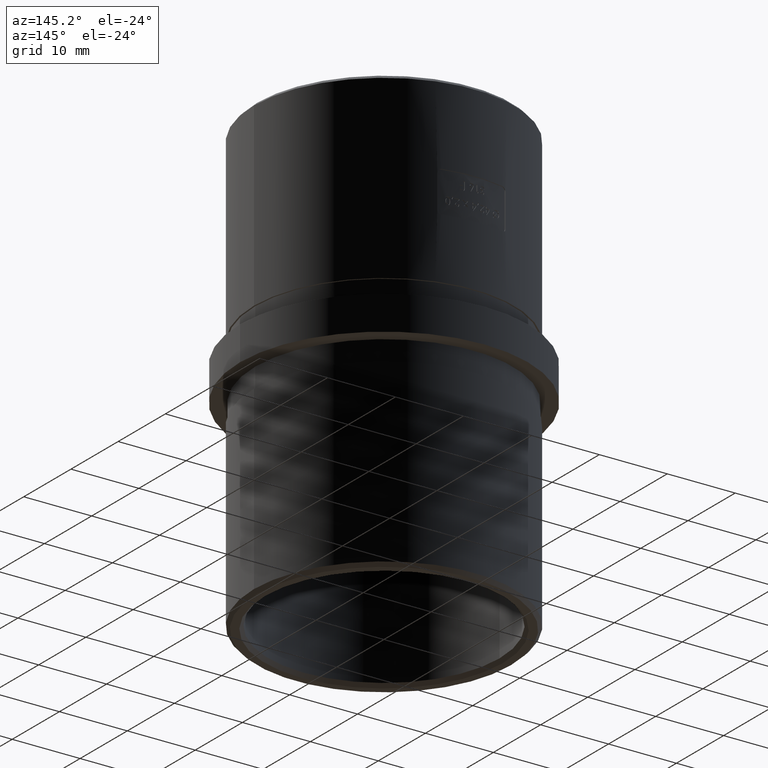
[diagram: clean part render]
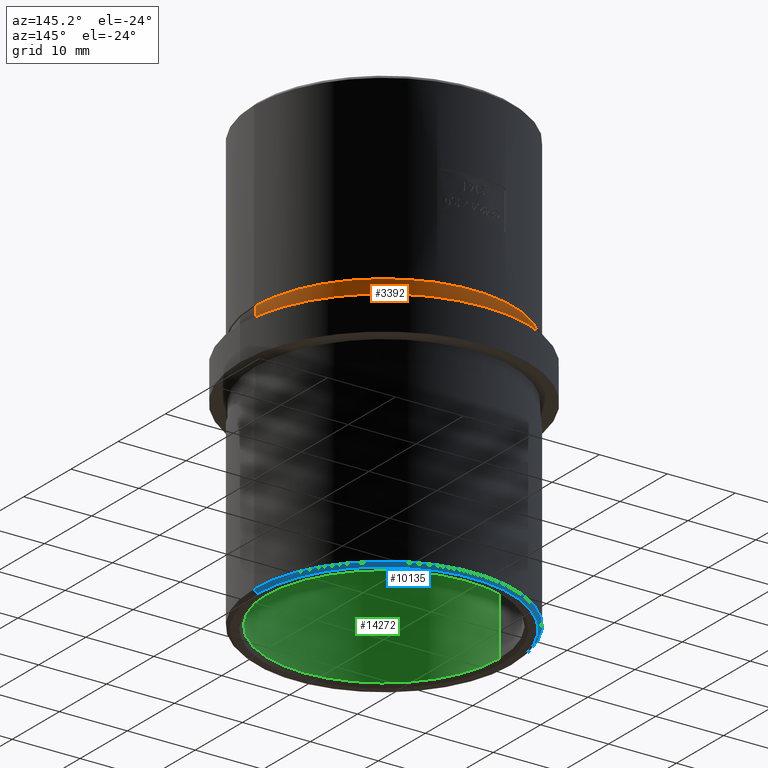
[diagram: same view with three faces highlighted in distinct colors, each labeled with its STEP entity id]
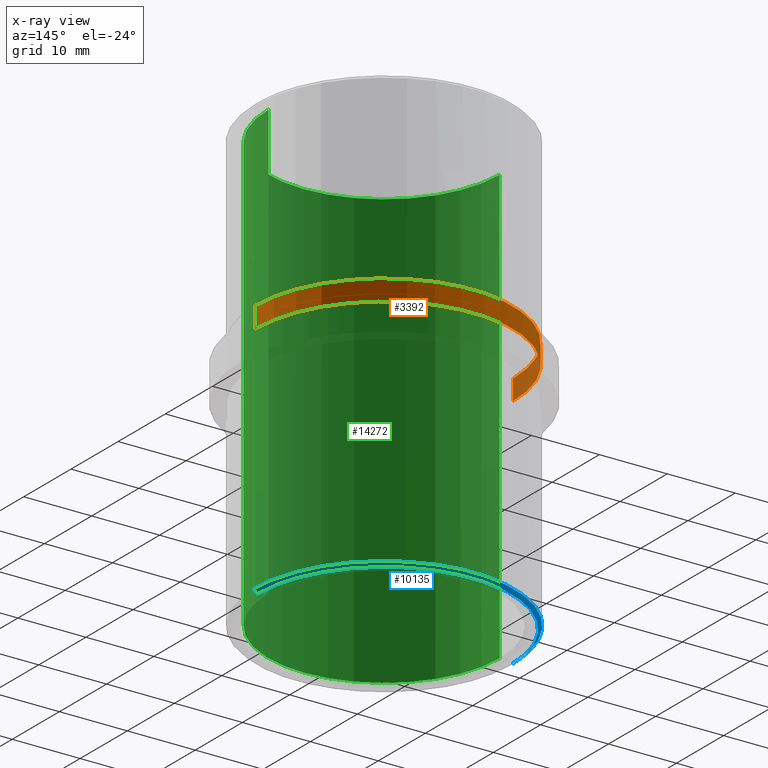
[diagram: x-ray of the same camera — body ghosted, the three highlighted faces saturated]
A machine part, auxiliary view with three faces highlighted in distinct colors.
The next image is the same camera in x-ray (body ghosted, the three faces saturated) — at least one of them is partly hidden behind the body in this view.
Their STEP definitions:

[orange] entity #3392 — the highlighted cylindrical surface (partial cylindrical patch) has radius 18.95 mm, axis along (-0, -0, -1).
#81 = CARTESIAN_POINT ( 'NONE',  ( 18.95000000000000300, 2.320705684384234700E-015, 5.500000000000000000 ) ) ;
#515 = EDGE_LOOP ( 'NONE', ( #10760, #6153, #7478, #11815 ) ) ;
#1548 = DIRECTION ( 'NONE',  ( -0.0000000000000000000, -0.0000000000000000000, -1.000000000000000000 ) ) ;
#2160 = EDGE_CURVE ( 'NONE', #15804, #7872, #11759, .T. ) ;
#2430 = DIRECTION ( 'NONE',  ( 0.0000000000000000000, 0.0000000000000000000, 1.000000000000000000 ) ) ;
#2750 = EDGE_CURVE ( 'NONE', #11804, #15804, #11912, .T. ) ;
#3185 = CARTESIAN_POINT ( 'NONE',  ( 0.0000000000000000000, 0.0000000000000000000, 5.500000000000000000 ) ) ;
#3392 = ADVANCED_FACE ( 'NONE', ( #3637 ), #14424, .T. ) ;
#3432 = CARTESIAN_POINT ( 'NONE',  ( -18.95000000000000300, 0.0000000000000000000, 5.500000000000000000 ) ) ;
#3637 = FACE_OUTER_BOUND ( 'NONE', #515, .T. ) ;
#4727 = DIRECTION ( 'NONE',  ( -0.0000000000000000000, -0.0000000000000000000, -1.000000000000000000 ) ) ;
#6153 = ORIENTED_EDGE ( 'NONE', *, *, #2750, .T. ) ;
#6667 = LINE ( 'NONE', #3432, #15877 ) ;
#6724 = DIRECTION ( 'NONE',  ( -0.0000000000000000000, -0.0000000000000000000, -1.000000000000000000 ) ) ;
#7478 = ORIENTED_EDGE ( 'NONE', *, *, #2160, .T. ) ;
#7872 = VERTEX_POINT ( 'NONE', #8988 ) ;
#8856 = CIRCLE ( 'NONE', #12518, 18.95000000000000300 ) ;
#8988 = CARTESIAN_POINT ( 'NONE',  ( -18.95000000000000300, 0.0000000000000000000, 2.500000000000000000 ) ) ;
#9531 = DIRECTION ( 'NONE',  ( 1.000000000000000000, 0.0000000000000000000, 0.0000000000000000000 ) ) ;
#9730 = CARTESIAN_POINT ( 'NONE',  ( 0.0000000000000000000, 0.0000000000000000000, 2.500000000000000000 ) ) ;
#10152 = EDGE_CURVE ( 'NONE', #11804, #16470, #8856, .T. ) ;
#10760 = ORIENTED_EDGE ( 'NONE', *, *, #10152, .F. ) ;
#11235 = DIRECTION ( 'NONE',  ( -1.000000000000000000, 0.0000000000000000000, 0.0000000000000000000 ) ) ;
#11510 = CARTESIAN_POINT ( 'NONE',  ( -18.95000000000000300, 0.0000000000000000000, 5.500000000000000000 ) ) ;
#11759 = CIRCLE ( 'NONE', #18632, 18.95000000000000300 ) ;
#11804 = VERTEX_POINT ( 'NONE', #12245 ) ;
#11815 = ORIENTED_EDGE ( 'NONE', *, *, #18365, .F. ) ;
#11912 = LINE ( 'NONE', #81, #14663 ) ;
#12245 = CARTESIAN_POINT ( 'NONE',  ( 18.95000000000000300, 2.320705684384234700E-015, 5.500000000000000000 ) ) ;
#12518 = AXIS2_PLACEMENT_3D ( 'NONE', #3185, #12900, #18657 ) ;
#12900 = DIRECTION ( 'NONE',  ( 0.0000000000000000000, 0.0000000000000000000, 1.000000000000000000 ) ) ;
#13993 = CARTESIAN_POINT ( 'NONE',  ( 0.0000000000000000000, 0.0000000000000000000, 5.500000000000000000 ) ) ;
#14424 = CYLINDRICAL_SURFACE ( 'NONE', #15963, 18.95000000000000300 ) ;
#14663 = VECTOR ( 'NONE', #1548, 1000.000000000000000 ) ;
#15804 = VERTEX_POINT ( 'NONE', #16927 ) ;
#15877 = VECTOR ( 'NONE', #4727, 1000.000000000000000 ) ;
#15963 = AXIS2_PLACEMENT_3D ( 'NONE', #13993, #6724, #11235 ) ;
#16470 = VERTEX_POINT ( 'NONE', #11510 ) ;
#16927 = CARTESIAN_POINT ( 'NONE',  ( 18.95000000000000300, 2.320705684384234700E-015, 2.500000000000000000 ) ) ;
#18365 = EDGE_CURVE ( 'NONE', #16470, #7872, #6667, .T. ) ;
#18632 = AXIS2_PLACEMENT_3D ( 'NONE', #9730, #2430, #9531 ) ;
#18657 = DIRECTION ( 'NONE',  ( 1.000000000000000000, 0.0000000000000000000, 0.0000000000000000000 ) ) ;

[blue] entity #10135 — the highlighted conical surface has half-angle 45 deg.
#995 = AXIS2_PLACEMENT_3D ( 'NONE', #4448, #1559, #4320 ) ;
#1497 = VERTEX_POINT ( 'NONE', #12984 ) ;
#1559 = DIRECTION ( 'NONE',  ( -0.0000000000000000000, -0.0000000000000000000, 1.000000000000000000 ) ) ;
#2404 = VERTEX_POINT ( 'NONE', #11816 ) ;
#2838 = DIRECTION ( 'NONE',  ( -0.0000000000000000000, -0.0000000000000000000, 1.000000000000000000 ) ) ;
#3006 = EDGE_CURVE ( 'NONE', #18858, #2404, #6839, .T. ) ;
#3029 = VERTEX_POINT ( 'NONE', #9720 ) ;
#3143 = AXIS2_PLACEMENT_3D ( 'NONE', #5605, #8691, #6942 ) ;
#3963 = DIRECTION ( 'NONE',  ( -0.7071067811865500200, 8.659560562354962400E-017, 0.7071067811865451300 ) ) ;
#4320 = DIRECTION ( 'NONE',  ( -1.000000000000000000, 0.0000000000000000000, 0.0000000000000000000 ) ) ;
#4448 = CARTESIAN_POINT ( 'NONE',  ( 0.0000000000000000000, 0.0000000000000000000, -32.00000000000000000 ) ) ;
#5584 = CARTESIAN_POINT ( 'NONE',  ( 19.15000000000000200, 0.0000000000000000000, -32.00000000000000000 ) ) ;
#5605 = CARTESIAN_POINT ( 'NONE',  ( 0.0000000000000000000, 0.0000000000000000000, -32.50000000000000000 ) ) ;
#6060 = ORIENTED_EDGE ( 'NONE', *, *, #10090, .F. ) ;
#6758 = CARTESIAN_POINT ( 'NONE',  ( -19.15000000000000200, 2.345198620367181800E-015, -32.00000000000000000 ) ) ;
#6839 = LINE ( 'NONE', #6758, #8009 ) ;
#6942 = DIRECTION ( 'NONE',  ( -1.000000000000000000, 0.0000000000000000000, 0.0000000000000000000 ) ) ;
#7378 = CARTESIAN_POINT ( 'NONE',  ( 0.0000000000000000000, 0.0000000000000000000, -32.00000000000000000 ) ) ;
#7762 = EDGE_CURVE ( 'NONE', #18858, #3029, #10101, .T. ) ;
#8009 = VECTOR ( 'NONE', #3963, 1000.000000000000100 ) ;
#8409 = CARTESIAN_POINT ( 'NONE',  ( -18.64999999999999900, 2.314582450388497600E-015, -32.50000000000000000 ) ) ;
#8691 = DIRECTION ( 'NONE',  ( 0.0000000000000000000, 0.0000000000000000000, -1.000000000000000000 ) ) ;
#8757 = ORIENTED_EDGE ( 'NONE', *, *, #10244, .F. ) ;
#9083 = CIRCLE ( 'NONE', #995, 19.15000000000000200 ) ;
#9720 = CARTESIAN_POINT ( 'NONE',  ( 18.64999999999999900, 0.0000000000000000000, -32.50000000000000000 ) ) ;
#10090 = EDGE_CURVE ( 'NONE', #1497, #2404, #9083, .T. ) ;
#10101 = CIRCLE ( 'NONE', #3143, 18.64999999999999900 ) ;
#10135 = ADVANCED_FACE ( 'NONE', ( #17572 ), #12761, .T. ) ;
#10244 = EDGE_CURVE ( 'NONE', #3029, #1497, #13684, .T. ) ;
#10323 = DIRECTION ( 'NONE',  ( 1.000000000000000000, 0.0000000000000000000, 0.0000000000000000000 ) ) ;
#11550 = AXIS2_PLACEMENT_3D ( 'NONE', #7378, #2838, #10323 ) ;
#11816 = CARTESIAN_POINT ( 'NONE',  ( -19.15000000000000200, 0.0000000000000000000, -32.00000000000000000 ) ) ;
#12511 = VECTOR ( 'NONE', #15786, 1000.000000000000100 ) ;
#12761 = CONICAL_SURFACE ( 'NONE', #11550, 19.15000000000000200, 0.7853981633974517200 ) ;
#12984 = CARTESIAN_POINT ( 'NONE',  ( 19.15000000000000200, -2.345198620367181800E-015, -32.00000000000000000 ) ) ;
#13684 = LINE ( 'NONE', #5584, #12511 ) ;
#13872 = ORIENTED_EDGE ( 'NONE', *, *, #7762, .F. ) ;
#15152 = ORIENTED_EDGE ( 'NONE', *, *, #3006, .T. ) ;
#15786 = DIRECTION ( 'NONE',  ( 0.7071067811865500200, 0.0000000000000000000, 0.7071067811865451300 ) ) ;
#15953 = EDGE_LOOP ( 'NONE', ( #13872, #15152, #6060, #8757 ) ) ;
#17572 = FACE_OUTER_BOUND ( 'NONE', #15953, .T. ) ;
#18858 = VERTEX_POINT ( 'NONE', #8409 ) ;

[green] entity #14272 — the highlighted cylindrical surface (partial cylindrical patch) has radius 17 mm, axis along (-0, -0, 1).
#60 = VECTOR ( 'NONE', #1111, 1000.000000000000000 ) ;
#96 = ORIENTED_EDGE ( 'NONE', *, *, #18481, .F. ) ;
#98 = VECTOR ( 'NONE', #14795, 1000.000000000000000 ) ;
#153 = EDGE_CURVE ( 'NONE', #8992, #13274, #11090, .T. ) ;
#194 = ORIENTED_EDGE ( 'NONE', *, *, #16015, .T. ) ;
#205 = CARTESIAN_POINT ( 'NONE',  ( -17.00000000000000000, -1.018200415092510100E-017, 4.901575854700858800 ) ) ;
#332 = CARTESIAN_POINT ( 'NONE',  ( -17.00000000000000000, -0.02359443886947687800, -0.6157190731958368500 ) ) ;
#426 = VERTEX_POINT ( 'NONE', #4260 ) ;
#438 = CARTESIAN_POINT ( 'NONE',  ( -17.00000000000000000, -1.451841727370134700E-017, 0.0000000000000000000 ) ) ;
#461 = EDGE_CURVE ( 'NONE', #1821, #16996, #506, .T. ) ;
#506 = B_SPLINE_CURVE_WITH_KNOTS ( 'NONE', 3,
 ( #3208, #2955, #10387, #4560 ),
 .UNSPECIFIED., .F., .F.,
 ( 4, 4 ),
 ( 0.0000000000000000000, 0.0001390969608293648400 ),
 .UNSPECIFIED. ) ;
#518 = VECTOR ( 'NONE', #17037, 1000.000000000000000 ) ;
#655 = CARTESIAN_POINT ( 'NONE',  ( -16.99999999999999300, -1.065186282819645400E-014, -0.6752836515302631500 ) ) ;
#688 = VECTOR ( 'NONE', #3036, 1000.000000000000000 ) ;
#715 = EDGE_CURVE ( 'NONE', #13132, #15500, #3980, .T. ) ;
#832 = EDGE_CURVE ( 'NONE', #6488, #5732, #8080, .T. ) ;
#835 = ORIENTED_EDGE ( 'NONE', *, *, #5159, .T. ) ;
#981 = VERTEX_POINT ( 'NONE', #4893 ) ;
#994 = EDGE_CURVE ( 'NONE', #9493, #5532, #3731, .T. ) ;
#1062 = VECTOR ( 'NONE', #15689, 1000.000000000000000 ) ;
#1090 = B_SPLINE_CURVE_WITH_KNOTS ( 'NONE', 3,
 ( #15584, #8272, #5456, #12825 ),
 .UNSPECIFIED., .F., .F.,
 ( 4, 4 ),
 ( 0.0006531291635182251200, 0.0007872892383985751200 ),
 .UNSPECIFIED. ) ;
#1111 = DIRECTION ( 'NONE',  ( 0.0000000000000000000, 0.0000000000000000000, -1.000000000000000000 ) ) ;
#1156 = EDGE_CURVE ( 'NONE', #16403, #13504, #3279, .T. ) ;
#1161 = CARTESIAN_POINT ( 'NONE',  ( -17.00000000000000000, -1.173486531376176200E-017, 1.356837606837611100 ) ) ;
#1202 = VECTOR ( 'NONE', #13883, 1000.000000000000000 ) ;
#1280 = VERTEX_POINT ( 'NONE', #18598 ) ;
#1388 = EDGE_CURVE ( 'NONE', #9089, #18645, #11992, .T. ) ;
#1453 = CARTESIAN_POINT ( 'NONE',  ( -16.99999153948185100, -0.01696047008547009500, 7.926104684161328100 ) ) ;
#1488 = CARTESIAN_POINT ( 'NONE',  ( -17.00000000000000000, 2.081899558550500300E-015, 0.0000000000000000000 ) ) ;
#1514 = EDGE_CURVE ( 'NONE', #11690, #16996, #12425, .T. ) ;
#1569 = LINE ( 'NONE', #13503, #10277 ) ;
#1580 = ORIENTED_EDGE ( 'NONE', *, *, #2269, .F. ) ;
#1586 = CARTESIAN_POINT ( 'NONE',  ( -16.99996615790213600, -0.03392094017094018200, -2.545395549545937300 ) ) ;
#1645 = B_SPLINE_CURVE_WITH_KNOTS ( 'NONE', 3,
 ( #17857, #3248, #1648, #17920 ),
 .UNSPECIFIED., .F., .F.,
 ( 4, 4 ),
 ( 0.0004303483552567856800, 0.0006014618264913205500 ),
 .UNSPECIFIED. ) ;
#1648 = CARTESIAN_POINT ( 'NONE',  ( -16.99996843644444400, -0.03277901597218872000, -0.4307630806502916700 ) ) ;
#1747 = VERTEX_POINT ( 'NONE', #2264 ) ;
#1752 = EDGE_CURVE ( 'NONE', #14467, #15543, #10594, .T. ) ;
#1797 = DIRECTION ( 'NONE',  ( 0.0000000000000000000, 0.0000000000000000000, -1.000000000000000000 ) ) ;
#1821 = VERTEX_POINT ( 'NONE', #13980 ) ;
#1870 = DIRECTION ( 'NONE',  ( -0.0000000000000000000, -0.0000000000000000000, 1.000000000000000000 ) ) ;
#1880 = EDGE_CURVE ( 'NONE', #14201, #6796, #9007, .T. ) ;
#1945 = CARTESIAN_POINT ( 'NONE',  ( -17.00000000000000000, 2.081899558550500300E-015, 0.0000000000000000000 ) ) ;
#1995 = EDGE_CURVE ( 'NONE', #3925, #18042, #4718, .T. ) ;
#2015 = CARTESIAN_POINT ( 'NONE',  ( -17.00000000000000000, -9.705192009639155200E-018, 0.0000000000000000000 ) ) ;
#2050 = VECTOR ( 'NONE', #4462, 1000.000000000000000 ) ;
#2093 = CARTESIAN_POINT ( 'NONE',  ( -17.00000000000000000, -9.563437048716300800E-018, 0.0000000000000000000 ) ) ;
#2096 = VECTOR ( 'NONE', #5787, 1000.000000000000000 ) ;
#2110 = VECTOR ( 'NONE', #11838, 1000.000000000000000 ) ;
#2118 = DIRECTION ( 'NONE',  ( 0.0000000000000000000, 0.0000000000000000000, -1.000000000000000000 ) ) ;
#2137 = DIRECTION ( 'NONE',  ( -0.0000000000000000000, -0.0000000000000000000, -1.000000000000000000 ) ) ;
#2159 = VECTOR ( 'NONE', #7217, 1000.000000000000000 ) ;
#2251 = CARTESIAN_POINT ( 'NONE',  ( -17.00000000000000000, -1.130960043099321600E-017, 0.0000000000000000000 ) ) ;
#2264 = CARTESIAN_POINT ( 'NONE',  ( -17.00000000000000000, -1.018200415092510100E-017, 4.121394230769235300 ) ) ;
#2269 = EDGE_CURVE ( 'NONE', #426, #13290, #18868, .T. ) ;
#2286 = ORIENTED_EDGE ( 'NONE', *, *, #18008, .T. ) ;
#2308 = CARTESIAN_POINT ( 'NONE',  ( -17.00000000000000000, 2.081899558550500300E-015, 32.00000000000000000 ) ) ;
#2326 = VERTEX_POINT ( 'NONE', #14701 ) ;
#2331 = DIRECTION ( 'NONE',  ( -0.0000000000000000000, -0.0000000000000000000, 1.000000000000000000 ) ) ;
#2418 = CARTESIAN_POINT ( 'NONE',  ( -17.00000000000000000, -1.538827726118246900E-017, 0.0000000000000000000 ) ) ;
#2449 = CARTESIAN_POINT ( 'NONE',  ( -17.00000000000000000, -1.442432734670082200E-012, -1.367181556334134700 ) ) ;
#2461 = CARTESIAN_POINT ( 'NONE',  ( -16.99999153948185100, -0.01696047008547009500, 6.347985944177350100 ) ) ;
#2464 = ORIENTED_EDGE ( 'NONE', *, *, #12108, .F. ) ;
#2466 = CARTESIAN_POINT ( 'NONE',  ( -17.00000000000000000, 4.175847468961536300E-012, 7.782763963893749800 ) ) ;
#2479 = CARTESIAN_POINT ( 'NONE',  ( -17.00000000000000700, -0.01155147925294645500, 6.254911555623271700 ) ) ;
#2555 = ORIENTED_EDGE ( 'NONE', *, *, #18838, .F. ) ;
#2584 = VECTOR ( 'NONE', #13943, 1000.000000000000000 ) ;
#2666 = VECTOR ( 'NONE', #16187, 1000.000000000000000 ) ;
#2683 = DIRECTION ( 'NONE',  ( -0.0000000000000000000, -0.0000000000000000000, 1.000000000000000000 ) ) ;
#2709 = CARTESIAN_POINT ( 'NONE',  ( -17.00000000000000000, -1.500167282230196800E-017, -7.784855769230776300 ) ) ;
#2732 = ORIENTED_EDGE ( 'NONE', *, *, #14046, .T. ) ;
#2783 = CARTESIAN_POINT ( 'NONE',  ( -17.00000000000000000, -1.173486531376176200E-017, 0.7462606837606879900 ) ) ;
#2797 = ORIENTED_EDGE ( 'NONE', *, *, #14655, .F. ) ;
#2807 = VECTOR ( 'NONE', #2118, 1000.000000000000000 ) ;
#2866 = EDGE_LOOP ( 'NONE', ( #3049, #194, #5906, #3071, #18382, #12160, #16572, #8803, #10661, #18911, #4927, #16526, #6375, #2732, #8251, #2555, #7091, #10981, #2464, #6221, #11727, #7406, #8534, #2797, #11909, #16148, #4495, #14026, #14053, #10543, #14214, #9808, #6453, #10712, #16773, #2286, #17127, #7222, #11747, #12895, #1580, #15685, #96, #5287, #5261, #17923, #15822, #11973, #12007, #10646, #6666, #14350, #18619, #10171, #835, #3265 ) ) ;
#2909 = CIRCLE ( 'NONE', #10446, 17.00000000000000000 ) ;
#2921 = CARTESIAN_POINT ( 'NONE',  ( -16.99996615790213600, -0.03392094017094018200, -1.527767344417734900 ) ) ;
#2941 = B_SPLINE_CURVE_WITH_KNOTS ( 'NONE', 3,
 ( #3210, #9093, #332, #10574 ),
 .UNSPECIFIED., .F., .F.,
 ( 4, 4 ),
 ( 0.0000000000000000000, 0.0001900168415862206300 ),
 .UNSPECIFIED. ) ;
#2955 = CARTESIAN_POINT ( 'NONE',  ( -16.99999262009691100, -0.01587733696618379800, 3.333420105072468800 ) ) ;
#3024 = VECTOR ( 'NONE', #7568, 1000.000000000000000 ) ;
#3036 = DIRECTION ( 'NONE',  ( 0.0000000000000000000, 0.0000000000000000000, -1.000000000000000000 ) ) ;
#3047 = LINE ( 'NONE', #6246, #13827 ) ;
#3049 = ORIENTED_EDGE ( 'NONE', *, *, #1752, .T. ) ;
#3071 = ORIENTED_EDGE ( 'NONE', *, *, #5937, .T. ) ;
#3086 = CARTESIAN_POINT ( 'NONE',  ( -17.00000000000000000, -1.083278828970727000E-017, 2.985042735042732900 ) ) ;
#3182 = CARTESIAN_POINT ( 'NONE',  ( -17.00000000000000000, 2.081899558550500300E-015, 0.0000000000000000000 ) ) ;
#3202 = VERTEX_POINT ( 'NONE', #16814 ) ;
#3208 = CARTESIAN_POINT ( 'NONE',  ( -16.99999153948185100, -0.01696047008547009500, 3.379903679220082900 ) ) ;
#3210 = CARTESIAN_POINT ( 'NONE',  ( -16.99996615790213600, -0.03392094017094018200, -0.4884085369925190700 ) ) ;
#3236 = VERTEX_POINT ( 'NONE', #6464 ) ;
#3248 = CARTESIAN_POINT ( 'NONE',  ( -16.99999999999999300, -0.02336642372416752500, -0.3729873568250621800 ) ) ;
#3261 = VERTEX_POINT ( 'NONE', #13688 ) ;
#3265 = ORIENTED_EDGE ( 'NONE', *, *, #15760, .F. ) ;
#3279 = LINE ( 'NONE', #15651, #15184 ) ;
#3302 = EDGE_CURVE ( 'NONE', #3202, #9915, #9134, .T. ) ;
#3316 = VECTOR ( 'NONE', #4747, 1000.000000000000000 ) ;
#3398 = CARTESIAN_POINT ( 'NONE',  ( -17.00000000000000000, 4.175847468961536300E-012, 7.782763963893749800 ) ) ;
#3418 = CARTESIAN_POINT ( 'NONE',  ( -17.00000000000000000, -1.018200415092510100E-017, 0.0000000000000000000 ) ) ;
#3599 = CARTESIAN_POINT ( 'NONE',  ( 17.00000000000000000, 0.0000000000000000000, -32.00000000000000000 ) ) ;
#3616 = DIRECTION ( 'NONE',  ( -1.000000000000000000, 0.0000000000000000000, 0.0000000000000000000 ) ) ;
#3699 = LINE ( 'NONE', #9934, #10582 ) ;
#3731 = LINE ( 'NONE', #13557, #6913 ) ;
#3750 = LINE ( 'NONE', #16323, #98 ) ;
#3814 = LINE ( 'NONE', #15169, #2666 ) ;
#3884 = CARTESIAN_POINT ( 'NONE',  ( -16.99996615790213600, -0.03392094017094018200, -1.527767344417734900 ) ) ;
#3921 = DIRECTION ( 'NONE',  ( -0.0000000000000000000, -0.0000000000000000000, 1.000000000000000000 ) ) ;
#3925 = VERTEX_POINT ( 'NONE', #2461 ) ;
#3980 = LINE ( 'NONE', #2093, #518 ) ;
#4030 = CARTESIAN_POINT ( 'NONE',  ( -16.99999251772928200, -0.01597994313300055800, 7.877590112892251600 ) ) ;
#4077 = CARTESIAN_POINT ( 'NONE',  ( -17.00000000000000700, -0.02229529309807184000, -1.638411926904188100 ) ) ;
#4095 = CARTESIAN_POINT ( 'NONE',  ( -17.00000000000000000, -9.563437048716300800E-018, 7.208199786324785300 ) ) ;
#4142 = CARTESIAN_POINT ( 'NONE',  ( -17.00000000000000000, 2.081899558550500300E-015, 0.0000000000000000000 ) ) ;
#4222 = DIRECTION ( 'NONE',  ( -0.0000000000000000000, -0.0000000000000000000, 1.000000000000000000 ) ) ;
#4230 = EDGE_CURVE ( 'NONE', #11403, #9011, #14409, .T. ) ;
#4247 = LINE ( 'NONE', #13533, #3316 ) ;
#4260 = CARTESIAN_POINT ( 'NONE',  ( -17.00000000000000000, -1.018200415092510100E-017, 5.563034188034191800 ) ) ;
#4357 = EDGE_CURVE ( 'NONE', #6282, #17164, #1569, .T. ) ;
#4400 = CARTESIAN_POINT ( 'NONE',  ( -17.00000000000000000, -1.083278828970727000E-017, 0.0000000000000000000 ) ) ;
#4428 = CARTESIAN_POINT ( 'NONE',  ( -17.00000000000000000, -1.018200415092510100E-017, 0.0000000000000000000 ) ) ;
#4453 = LINE ( 'NONE', #15345, #9849 ) ;
#4462 = DIRECTION ( 'NONE',  ( 0.0000000000000000000, 0.0000000000000000000, -1.000000000000000000 ) ) ;
#4485 = LINE ( 'NONE', #11798, #10212 ) ;
#4495 = ORIENTED_EDGE ( 'NONE', *, *, #994, .T. ) ;
#4560 = CARTESIAN_POINT ( 'NONE',  ( -16.99999999999998900, -2.926111315190238300E-013, 3.241965619992238900 ) ) ;
#4663 = CARTESIAN_POINT ( 'NONE',  ( -17.00000000000000000, -0.02229529309807360200, -2.656040132032392100 ) ) ;
#4718 = B_SPLINE_CURVE_WITH_KNOTS ( 'NONE', 3,
 ( #8334, #5505, #2479, #18706 ),
 .UNSPECIFIED., .F., .F.,
 ( 4, 4 ),
 ( 0.0000000000000000000, 0.0001390969608293637800 ),
 .UNSPECIFIED. ) ;
#4747 = DIRECTION ( 'NONE',  ( -0.0000000000000000000, -0.0000000000000000000, 1.000000000000000000 ) ) ;
#4825 = DIRECTION ( 'NONE',  ( -0.0000000000000000000, -0.0000000000000000000, 1.000000000000000000 ) ) ;
#4893 = CARTESIAN_POINT ( 'NONE',  ( 17.00000000000000000, 0.0000000000000000000, 32.00000000000000000 ) ) ;
#4912 = LINE ( 'NONE', #6586, #16393 ) ;
#4927 = ORIENTED_EDGE ( 'NONE', *, *, #18755, .F. ) ;
#5159 = EDGE_CURVE ( 'NONE', #13504, #981, #2909, .T. ) ;
#5198 = EDGE_CURVE ( 'NONE', #10666, #9915, #9788, .T. ) ;
#5212 = CARTESIAN_POINT ( 'NONE',  ( -17.00000000000000000, -1.173486531376176200E-017, 0.0000000000000000000 ) ) ;
#5261 = ORIENTED_EDGE ( 'NONE', *, *, #1995, .F. ) ;
#5287 = ORIENTED_EDGE ( 'NONE', *, *, #10393, .T. ) ;
#5349 = CARTESIAN_POINT ( 'NONE',  ( -17.00000000000000000, -1.538827726118246900E-017, 0.0000000000000000000 ) ) ;
#5419 = LINE ( 'NONE', #438, #17790 ) ;
#5437 = CARTESIAN_POINT ( 'NONE',  ( -17.00000000000000000, 2.081899558550500300E-015, 0.0000000000000000000 ) ) ;
#5456 = CARTESIAN_POINT ( 'NONE',  ( -16.99999276823096700, -0.01572885772451848200, 6.393346893424442200 ) ) ;
#5494 = LINE ( 'NONE', #16793, #9169 ) ;
#5505 = CARTESIAN_POINT ( 'NONE',  ( -16.99999262009691100, -0.01587733696618393700, 6.301502370029736800 ) ) ;
#5515 = VERTEX_POINT ( 'NONE', #7698 ) ;
#5532 = VERTEX_POINT ( 'NONE', #18308 ) ;
#5632 = LINE ( 'NONE', #17045, #6523 ) ;
#5634 = B_SPLINE_CURVE_WITH_KNOTS ( 'NONE', 3,
 ( #1586, #5991, #4663, #12089 ),
 .UNSPECIFIED., .F., .F.,
 ( 4, 4 ),
 ( 0.0000000000000000000, 0.0001651755009097188600 ),
 .UNSPECIFIED. ) ;
#5638 = CARTESIAN_POINT ( 'NONE',  ( -17.00000000000000000, -1.442474239284497600E-012, -2.384809761462337400 ) ) ;
#5732 = VERTEX_POINT ( 'NONE', #6699 ) ;
#5767 = LINE ( 'NONE', #2015, #1202 ) ;
#5781 = LINE ( 'NONE', #18253, #14512 ) ;
#5787 = DIRECTION ( 'NONE',  ( -0.0000000000000000000, -0.0000000000000000000, 1.000000000000000000 ) ) ;
#5830 = LINE ( 'NONE', #4142, #2159 ) ;
#5906 = ORIENTED_EDGE ( 'NONE', *, *, #6154, .F. ) ;
#5937 = EDGE_CURVE ( 'NONE', #2326, #8011, #3814, .T. ) ;
#5991 = CARTESIAN_POINT ( 'NONE',  ( -16.99996777605386100, -0.03310998020282574000, -2.601104876991749700 ) ) ;
#6004 = VECTOR ( 'NONE', #1797, 1000.000000000000000 ) ;
#6035 = CARTESIAN_POINT ( 'NONE',  ( -17.00000000000000000, -0.01193837131163323600, 8.021440014537448700 ) ) ;
#6154 = EDGE_CURVE ( 'NONE', #2326, #3236, #16429, .T. ) ;
#6221 = ORIENTED_EDGE ( 'NONE', *, *, #4230, .T. ) ;
#6230 = EDGE_CURVE ( 'NONE', #426, #6436, #17106, .T. ) ;
#6246 = CARTESIAN_POINT ( 'NONE',  ( -17.00000000000000000, -1.130960043099321600E-017, 0.0000000000000000000 ) ) ;
#6282 = VERTEX_POINT ( 'NONE', #8825 ) ;
#6300 = CARTESIAN_POINT ( 'NONE',  ( -17.00000000000000000, 2.081899558550500300E-015, 0.0000000000000000000 ) ) ;
#6338 = CARTESIAN_POINT ( 'NONE',  ( -16.99996615790213600, -0.03392094017094018200, -0.4884085369925190700 ) ) ;
#6348 = CARTESIAN_POINT ( 'NONE',  ( 0.0000000000000000000, 0.0000000000000000000, 32.00000000000000000 ) ) ;
#6375 = ORIENTED_EDGE ( 'NONE', *, *, #5198, .F. ) ;
#6436 = VERTEX_POINT ( 'NONE', #7784 ) ;
#6453 = ORIENTED_EDGE ( 'NONE', *, *, #1514, .T. ) ;
#6464 = CARTESIAN_POINT ( 'NONE',  ( -17.00000000000000000, -1.538827726118246900E-017, -9.328258547008555700 ) ) ;
#6470 = DIRECTION ( 'NONE',  ( 0.0000000000000000000, 0.0000000000000000000, -1.000000000000000000 ) ) ;
#6478 = CARTESIAN_POINT ( 'NONE',  ( -17.00000000000000000, -1.500167282230196800E-017, 0.0000000000000000000 ) ) ;
#6488 = VERTEX_POINT ( 'NONE', #12273 ) ;
#6522 = DIRECTION ( 'NONE',  ( -0.0000000000000000000, -0.0000000000000000000, 1.000000000000000000 ) ) ;
#6523 = VECTOR ( 'NONE', #18514, 1000.000000000000000 ) ;
#6543 = VERTEX_POINT ( 'NONE', #9370 ) ;
#6544 = LINE ( 'NONE', #14697, #8403 ) ;
#6563 = B_SPLINE_CURVE_WITH_KNOTS ( 'NONE', 3,
 ( #18553, #8449, #9910, #6817 ),
 .UNSPECIFIED., .F., .F.,
 ( 4, 4 ),
 ( 0.0006531291635182380300, 0.0007872892383985921400 ),
 .UNSPECIFIED. ) ;
#6569 = B_SPLINE_CURVE_WITH_KNOTS ( 'NONE', 3,
 ( #11392, #15948, #4077, #14459 ),
 .UNSPECIFIED., .F., .F.,
 ( 4, 4 ),
 ( 0.0000000000000000000, 0.0001651755009097190200 ),
 .UNSPECIFIED. ) ;
#6586 = CARTESIAN_POINT ( 'NONE',  ( 17.00000000000000000, 0.0000000000000000000, 0.0000000000000000000 ) ) ;
#6607 = CARTESIAN_POINT ( 'NONE',  ( -17.00000000000000000, -8.777341356325961300E-018, 9.226495726495729200 ) ) ;
#6646 = CARTESIAN_POINT ( 'NONE',  ( -17.00000000000000000, -1.389985017149255000E-017, 0.0000000000000000000 ) ) ;
#6666 = ORIENTED_EDGE ( 'NONE', *, *, #7917, .F. ) ;
#6678 = LINE ( 'NONE', #5212, #60 ) ;
#6699 = CARTESIAN_POINT ( 'NONE',  ( -17.00000000000000000, -1.389985017149255000E-017, -5.037259615384615900 ) ) ;
#6745 = DIRECTION ( 'NONE',  ( -0.0000000000000000000, -0.0000000000000000000, 1.000000000000000000 ) ) ;
#6759 = VERTEX_POINT ( 'NONE', #11475 ) ;
#6779 = CARTESIAN_POINT ( 'NONE',  ( -17.00000000000000000, -1.500167282230196800E-017, -7.666132478632485800 ) ) ;
#6796 = VERTEX_POINT ( 'NONE', #1161 ) ;
#6813 = EDGE_CURVE ( 'NONE', #6759, #3925, #1090, .T. ) ;
#6817 = CARTESIAN_POINT ( 'NONE',  ( -16.99999153948185100, -0.01696047008547009500, 3.379903679220082900 ) ) ;
#6828 = AXIS2_PLACEMENT_3D ( 'NONE', #10920, #2137, #3616 ) ;
#6871 = EDGE_CURVE ( 'NONE', #13132, #15093, #4485, .T. ) ;
#6910 = EDGE_CURVE ( 'NONE', #6543, #5515, #14125, .T. ) ;
#6913 = VECTOR ( 'NONE', #4825, 1000.000000000000000 ) ;
#7091 = ORIENTED_EDGE ( 'NONE', *, *, #17206, .T. ) ;
#7167 = VERTEX_POINT ( 'NONE', #12317 ) ;
#7174 = VERTEX_POINT ( 'NONE', #12380 ) ;
#7195 = VECTOR ( 'NONE', #16376, 1000.000000000000000 ) ;
#7217 = DIRECTION ( 'NONE',  ( -0.0000000000000000000, -0.0000000000000000000, 1.000000000000000000 ) ) ;
#7219 = CARTESIAN_POINT ( 'NONE',  ( -17.00000000000000000, -1.130960043099321600E-017, 2.594951923076926000 ) ) ;
#7222 = ORIENTED_EDGE ( 'NONE', *, *, #15533, .T. ) ;
#7313 = CARTESIAN_POINT ( 'NONE',  ( -17.00000000000000000, -1.130960043099321600E-017, 1.865651709401712200 ) ) ;
#7406 = ORIENTED_EDGE ( 'NONE', *, *, #17214, .F. ) ;
#7568 = DIRECTION ( 'NONE',  ( -0.0000000000000000000, -0.0000000000000000000, 1.000000000000000000 ) ) ;
#7574 = CARTESIAN_POINT ( 'NONE',  ( -17.00000000000000000, 2.081899558550500300E-015, 0.0000000000000000000 ) ) ;
#7698 = CARTESIAN_POINT ( 'NONE',  ( -17.00000000000000000, -1.173486531376176200E-017, 0.6275373931623974300 ) ) ;
#7784 = CARTESIAN_POINT ( 'NONE',  ( -17.00000000000000000, -9.705192009639155200E-018, 5.834401709401709500 ) ) ;
#7803 = EDGE_CURVE ( 'NONE', #18073, #7167, #6569, .T. ) ;
#7883 = EDGE_CURVE ( 'NONE', #15625, #1747, #9173, .T. ) ;
#7911 = EDGE_CURVE ( 'NONE', #11690, #12827, #8936, .T. ) ;
#7917 = EDGE_CURVE ( 'NONE', #6282, #1280, #11660, .T. ) ;
#7929 = VERTEX_POINT ( 'NONE', #18994 ) ;
#8011 = VERTEX_POINT ( 'NONE', #10745 ) ;
#8041 = VECTOR ( 'NONE', #9741, 1000.000000000000000 ) ;
#8043 = CARTESIAN_POINT ( 'NONE',  ( -17.00000000000000000, -9.705192009639155200E-018, 5.953125000000000000 ) ) ;
#8064 = DIRECTION ( 'NONE',  ( -0.0000000000000000000, -0.0000000000000000000, 1.000000000000000000 ) ) ;
#8080 = LINE ( 'NONE', #17363, #17701 ) ;
#8251 = ORIENTED_EDGE ( 'NONE', *, *, #17222, .F. ) ;
#8272 = CARTESIAN_POINT ( 'NONE',  ( -17.00000000000000700, -0.01137909147558697200, 6.438985007592927800 ) ) ;
#8288 = EDGE_CURVE ( 'NONE', #9493, #6796, #6678, .T. ) ;
#8313 = LINE ( 'NONE', #2251, #2807 ) ;
#8334 = CARTESIAN_POINT ( 'NONE',  ( -16.99999153948185100, -0.01696047008547009500, 6.347985944177350100 ) ) ;
#8403 = VECTOR ( 'NONE', #8913, 1000.000000000000000 ) ;
#8449 = CARTESIAN_POINT ( 'NONE',  ( -16.99999999999999300, -0.01137909147558720800, 3.470902742635660200 ) ) ;
#8517 = CARTESIAN_POINT ( 'NONE',  ( -16.99999999999998900, -2.926111315190238300E-013, 3.241965619992238900 ) ) ;
#8534 = ORIENTED_EDGE ( 'NONE', *, *, #6910, .T. ) ;
#8565 = CARTESIAN_POINT ( 'NONE',  ( -17.00000000000000000, -9.563437048716300800E-018, 7.089476495726494900 ) ) ;
#8640 = CARTESIAN_POINT ( 'NONE',  ( -17.00000000000000000, 2.081899558550500300E-015, 0.0000000000000000000 ) ) ;
#8659 = EDGE_CURVE ( 'NONE', #17664, #13753, #5781, .T. ) ;
#8705 = B_SPLINE_CURVE_WITH_KNOTS ( 'NONE', 3,
 ( #5638, #11417, #11356, #12767 ),
 .UNSPECIFIED., .F., .F.,
 ( 4, 4 ),
 ( 0.0007605899329855634700, 0.0009248880302782779400 ),
 .UNSPECIFIED. ) ;
#8721 = DIRECTION ( 'NONE',  ( -0.0000000000000000000, -0.0000000000000000000, 1.000000000000000000 ) ) ;
#8803 = ORIENTED_EDGE ( 'NONE', *, *, #9034, .T. ) ;
#8825 = CARTESIAN_POINT ( 'NONE',  ( -17.00000000000000000, 7.618002569368363700E-016, 8.067360920918872600 ) ) ;
#8868 = CARTESIAN_POINT ( 'NONE',  ( -17.00000000000000000, -1.018200415092510100E-017, 0.0000000000000000000 ) ) ;
#8913 = DIRECTION ( 'NONE',  ( 0.0000000000000000000, 0.0000000000000000000, -1.000000000000000000 ) ) ;
#8927 = CARTESIAN_POINT ( 'NONE',  ( -17.00000000000000000, 7.618002569368363700E-016, 8.067360920918872600 ) ) ;
#8936 = LINE ( 'NONE', #4400, #2050 ) ;
#8947 = CARTESIAN_POINT ( 'NONE',  ( -17.00000000000000000, -1.018200415092510100E-017, 4.782852564102568300 ) ) ;
#8992 = VERTEX_POINT ( 'NONE', #205 ) ;
#9007 = LINE ( 'NONE', #7574, #11971 ) ;
#9011 = VERTEX_POINT ( 'NONE', #655 ) ;
#9034 = EDGE_CURVE ( 'NONE', #9089, #16588, #14942, .T. ) ;
#9089 = VERTEX_POINT ( 'NONE', #6779 ) ;
#9093 = CARTESIAN_POINT ( 'NONE',  ( -16.99996731583899400, -0.03334062349093328700, -0.5524600101641465900 ) ) ;
#9125 = CARTESIAN_POINT ( 'NONE',  ( -16.99996615790213600, -0.03392094017094018200, -2.545395549545937300 ) ) ;
#9134 = LINE ( 'NONE', #1945, #17855 ) ;
#9169 = VECTOR ( 'NONE', #6522, 1000.000000000000000 ) ;
#9173 = LINE ( 'NONE', #8868, #688 ) ;
#9258 = EDGE_CURVE ( 'NONE', #8992, #13290, #3699, .T. ) ;
#9363 = DIRECTION ( 'NONE',  ( 1.000000000000000000, 0.0000000000000000000, 0.0000000000000000000 ) ) ;
#9370 = CARTESIAN_POINT ( 'NONE',  ( -17.00000000000000000, 2.082854017298324500E-015, -0.3208016093370458800 ) ) ;
#9423 = DIRECTION ( 'NONE',  ( 0.0000000000000000000, 0.0000000000000000000, 1.000000000000000000 ) ) ;
#9493 = VERTEX_POINT ( 'NONE', #15952 ) ;
#9495 = DIRECTION ( 'NONE',  ( -0.0000000000000000000, -0.0000000000000000000, 1.000000000000000000 ) ) ;
#9629 = LINE ( 'NONE', #17780, #16514 ) ;
#9661 = EDGE_CURVE ( 'NONE', #7929, #18645, #10923, .T. ) ;
#9741 = DIRECTION ( 'NONE',  ( 0.0000000000000000000, 0.0000000000000000000, -1.000000000000000000 ) ) ;
#9788 = LINE ( 'NONE', #10786, #16449 ) ;
#9808 = ORIENTED_EDGE ( 'NONE', *, *, #7911, .F. ) ;
#9849 = VECTOR ( 'NONE', #2331, 1000.000000000000000 ) ;
#9875 = EDGE_CURVE ( 'NONE', #7929, #8011, #15757, .T. ) ;
#9910 = CARTESIAN_POINT ( 'NONE',  ( -16.99999276823097500, -0.01572885772451848900, 3.425264628467175100 ) ) ;
#9915 = VERTEX_POINT ( 'NONE', #17075 ) ;
#9934 = CARTESIAN_POINT ( 'NONE',  ( -17.00000000000000000, 2.081899558550500300E-015, 0.0000000000000000000 ) ) ;
#10107 = EDGE_CURVE ( 'NONE', #16403, #17164, #6544, .T. ) ;
#10171 = ORIENTED_EDGE ( 'NONE', *, *, #1156, .T. ) ;
#10212 = VECTOR ( 'NONE', #13277, 1000.000000000000000 ) ;
#10219 = CARTESIAN_POINT ( 'NONE',  ( -17.00000000000000000, 2.081899558550500300E-015, -32.00000000000000000 ) ) ;
#10220 = CARTESIAN_POINT ( 'NONE',  ( -16.99999264758021100, -0.01584978963067457800, 7.973683317131890800 ) ) ;
#10277 = VECTOR ( 'NONE', #10421, 1000.000000000000000 ) ;
#10387 = CARTESIAN_POINT ( 'NONE',  ( -16.99999999999999300, -0.01155147925294687900, 3.286829290666002800 ) ) ;
#10393 = EDGE_CURVE ( 'NONE', #10681, #18042, #5632, .T. ) ;
#10406 = CARTESIAN_POINT ( 'NONE',  ( -17.00000000000000000, -1.451841727370134700E-017, -6.360176282051285500 ) ) ;
#10421 = DIRECTION ( 'NONE',  ( -0.0000000000000000000, -0.0000000000000000000, 1.000000000000000000 ) ) ;
#10446 = AXIS2_PLACEMENT_3D ( 'NONE', #6348, #9423, #9363 ) ;
#10543 = ORIENTED_EDGE ( 'NONE', *, *, #17532, .F. ) ;
#10574 = CARTESIAN_POINT ( 'NONE',  ( -16.99999999999999300, -1.065186282819645400E-014, -0.6752836515302631500 ) ) ;
#10582 = VECTOR ( 'NONE', #2683, 1000.000000000000000 ) ;
#10594 = CIRCLE ( 'NONE', #6828, 17.00000000000000000 ) ;
#10622 = EDGE_CURVE ( 'NONE', #6488, #16588, #5419, .T. ) ;
#10646 = ORIENTED_EDGE ( 'NONE', *, *, #12080, .F. ) ;
#10661 = ORIENTED_EDGE ( 'NONE', *, *, #10622, .F. ) ;
#10666 = VERTEX_POINT ( 'NONE', #15105 ) ;
#10681 = VERTEX_POINT ( 'NONE', #8043 ) ;
#10712 = ORIENTED_EDGE ( 'NONE', *, *, #461, .F. ) ;
#10745 = CARTESIAN_POINT ( 'NONE',  ( -17.00000000000000000, -1.538827726118246900E-017, -8.202772352430564200 ) ) ;
#10786 = CARTESIAN_POINT ( 'NONE',  ( -17.00000000000000000, -1.351324573261205100E-017, 0.0000000000000000000 ) ) ;
#10880 = VERTEX_POINT ( 'NONE', #7219 ) ;
#10920 = CARTESIAN_POINT ( 'NONE',  ( 0.0000000000000000000, 0.0000000000000000000, -32.00000000000000000 ) ) ;
#10923 = LINE ( 'NONE', #6300, #11159 ) ;
#10981 = ORIENTED_EDGE ( 'NONE', *, *, #7803, .F. ) ;
#11041 = VECTOR ( 'NONE', #6745, 1000.000000000000000 ) ;
#11090 = LINE ( 'NONE', #3418, #7195 ) ;
#11159 = VECTOR ( 'NONE', #9495, 1000.000000000000000 ) ;
#11203 = CARTESIAN_POINT ( 'NONE',  ( -17.00000000000000000, -1.442432734670082200E-012, -1.367181556334134700 ) ) ;
#11268 = LINE ( 'NONE', #6646, #8041 ) ;
#11356 = CARTESIAN_POINT ( 'NONE',  ( -16.99996802909202000, -0.03298316649242930700, -2.489887650956952700 ) ) ;
#11365 = DIRECTION ( 'NONE',  ( -0.0000000000000000000, -0.0000000000000000000, 1.000000000000000000 ) ) ;
#11392 = CARTESIAN_POINT ( 'NONE',  ( -16.99996615790213600, -0.03392094017094018200, -1.527767344417734900 ) ) ;
#11400 = CARTESIAN_POINT ( 'NONE',  ( -17.00000000000000400, -0.01206999834265064600, 7.829535884119891900 ) ) ;
#11403 = VERTEX_POINT ( 'NONE', #2449 ) ;
#11417 = CARTESIAN_POINT ( 'NONE',  ( -16.99999999999998600, -0.02318457066519431800, -2.434799873651434200 ) ) ;
#11475 = CARTESIAN_POINT ( 'NONE',  ( -16.99999999999999300, 1.834673363752814500E-015, 6.482450398490510900 ) ) ;
#11639 = CARTESIAN_POINT ( 'NONE',  ( -17.00000000000000000, -1.018200415092510100E-017, 4.240117521367525700 ) ) ;
#11660 = B_SPLINE_CURVE_WITH_KNOTS ( 'NONE', 3,
 ( #8927, #6035, #10220, #1453 ),
 .UNSPECIFIED., .F., .F.,
 ( 4, 4 ),
 ( 0.0006318041699627396500, 0.0007729334285678874000 ),
 .UNSPECIFIED. ) ;
#11690 = VERTEX_POINT ( 'NONE', #3086 ) ;
#11705 = CARTESIAN_POINT ( 'NONE',  ( -16.99996802909202700, -0.03298316649242933500, -1.472259445828750800 ) ) ;
#11727 = ORIENTED_EDGE ( 'NONE', *, *, #15125, .F. ) ;
#11733 = LINE ( 'NONE', #12797, #11041 ) ;
#11747 = ORIENTED_EDGE ( 'NONE', *, *, #153, .F. ) ;
#11798 = CARTESIAN_POINT ( 'NONE',  ( -17.00000000000000000, 2.081899558550500300E-015, 0.0000000000000000000 ) ) ;
#11817 = VECTOR ( 'NONE', #8721, 1000.000000000000000 ) ;
#11838 = DIRECTION ( 'NONE',  ( -0.0000000000000000000, -0.0000000000000000000, 1.000000000000000000 ) ) ;
#11909 = ORIENTED_EDGE ( 'NONE', *, *, #1880, .T. ) ;
#11971 = VECTOR ( 'NONE', #14421, 1000.000000000000000 ) ;
#11973 = ORIENTED_EDGE ( 'NONE', *, *, #715, .F. ) ;
#11992 = LINE ( 'NONE', #6478, #2584 ) ;
#11998 = EDGE_CURVE ( 'NONE', #7174, #1821, #6563, .T. ) ;
#12007 = ORIENTED_EDGE ( 'NONE', *, *, #6871, .T. ) ;
#12080 = EDGE_CURVE ( 'NONE', #1280, #15093, #18802, .T. ) ;
#12089 = CARTESIAN_POINT ( 'NONE',  ( -17.00000000000000000, -3.181921618008141900E-013, -2.706818623920671700 ) ) ;
#12108 = EDGE_CURVE ( 'NONE', #11403, #18073, #17872, .T. ) ;
#12159 = DIRECTION ( 'NONE',  ( 0.0000000000000000000, 0.0000000000000000000, -1.000000000000000000 ) ) ;
#12160 = ORIENTED_EDGE ( 'NONE', *, *, #9661, .T. ) ;
#12273 = CARTESIAN_POINT ( 'NONE',  ( -17.00000000000000000, -1.451841727370134700E-017, -6.343215811965816200 ) ) ;
#12287 = VECTOR ( 'NONE', #18503, 1000.000000000000000 ) ;
#12317 = CARTESIAN_POINT ( 'NONE',  ( -17.00000000000000700, -3.181148700443772400E-013, -1.689190418792469600 ) ) ;
#12322 = VERTEX_POINT ( 'NONE', #9125 ) ;
#12380 = CARTESIAN_POINT ( 'NONE',  ( -16.99999999999999300, 1.863048967485833600E-015, 3.514368133533244600 ) ) ;
#12425 = LINE ( 'NONE', #15991, #2096 ) ;
#12476 = VERTEX_POINT ( 'NONE', #15600 ) ;
#12550 = VERTEX_POINT ( 'NONE', #6338 ) ;
#12615 = FACE_OUTER_BOUND ( 'NONE', #2866, .T. ) ;
#12767 = CARTESIAN_POINT ( 'NONE',  ( -16.99996615790213600, -0.03392094017094018200, -2.545395549545937300 ) ) ;
#12797 = CARTESIAN_POINT ( 'NONE',  ( -17.00000000000000000, 2.081899558550500300E-015, 0.0000000000000000000 ) ) ;
#12825 = CARTESIAN_POINT ( 'NONE',  ( -16.99999153948185100, -0.01696047008547009500, 6.347985944177350100 ) ) ;
#12827 = VERTEX_POINT ( 'NONE', #15778 ) ;
#12864 = CARTESIAN_POINT ( 'NONE',  ( -17.00000000000000700, -2.928559240407803800E-013, 6.210047884949506900 ) ) ;
#12895 = ORIENTED_EDGE ( 'NONE', *, *, #9258, .T. ) ;
#13132 = VERTEX_POINT ( 'NONE', #4095 ) ;
#13143 = CARTESIAN_POINT ( 'NONE',  ( -17.00000000000000000, -1.130960043099321600E-017, 2.476228632478635100 ) ) ;
#13274 = VERTEX_POINT ( 'NONE', #8947 ) ;
#13277 = DIRECTION ( 'NONE',  ( -0.0000000000000000000, -0.0000000000000000000, 1.000000000000000000 ) ) ;
#13290 = VERTEX_POINT ( 'NONE', #16319 ) ;
#13503 = CARTESIAN_POINT ( 'NONE',  ( -17.00000000000000000, 2.081899558550500300E-015, 0.0000000000000000000 ) ) ;
#13504 = VERTEX_POINT ( 'NONE', #2308 ) ;
#13533 = CARTESIAN_POINT ( 'NONE',  ( -17.00000000000000000, 2.081899558550500300E-015, 0.0000000000000000000 ) ) ;
#13557 = CARTESIAN_POINT ( 'NONE',  ( -17.00000000000000000, 2.081899558550500300E-015, 0.0000000000000000000 ) ) ;
#13688 = CARTESIAN_POINT ( 'NONE',  ( -17.00000000000000000, -1.442474239284497600E-012, -2.384809761462337400 ) ) ;
#13691 = AXIS2_PLACEMENT_3D ( 'NONE', #17461, #1870, #16432 ) ;
#13753 = VERTEX_POINT ( 'NONE', #13143 ) ;
#13827 = VECTOR ( 'NONE', #16516, 1000.000000000000000 ) ;
#13883 = DIRECTION ( 'NONE',  ( 0.0000000000000000000, 0.0000000000000000000, -1.000000000000000000 ) ) ;
#13943 = DIRECTION ( 'NONE',  ( 0.0000000000000000000, 0.0000000000000000000, -1.000000000000000000 ) ) ;
#13946 = VECTOR ( 'NONE', #4222, 1000.000000000000000 ) ;
#13980 = CARTESIAN_POINT ( 'NONE',  ( -16.99999153948185100, -0.01696047008547009500, 3.379903679220082900 ) ) ;
#14026 = ORIENTED_EDGE ( 'NONE', *, *, #17353, .F. ) ;
#14046 = EDGE_CURVE ( 'NONE', #10666, #12476, #4453, .T. ) ;
#14053 = ORIENTED_EDGE ( 'NONE', *, *, #8659, .T. ) ;
#14125 = LINE ( 'NONE', #1488, #11817 ) ;
#14201 = VERTEX_POINT ( 'NONE', #2783 ) ;
#14214 = ORIENTED_EDGE ( 'NONE', *, *, #16146, .T. ) ;
#14216 = CYLINDRICAL_SURFACE ( 'NONE', #13691, 17.00000000000000000 ) ;
#14272 = ADVANCED_FACE ( 'NONE', ( #12615 ), #14216, .F. ) ;
#14284 = DIRECTION ( 'NONE',  ( -0.0000000000000000000, -0.0000000000000000000, 1.000000000000000000 ) ) ;
#14350 = ORIENTED_EDGE ( 'NONE', *, *, #4357, .T. ) ;
#14409 = LINE ( 'NONE', #8640, #13946 ) ;
#14417 = EDGE_CURVE ( 'NONE', #6759, #15500, #5494, .T. ) ;
#14421 = DIRECTION ( 'NONE',  ( -0.0000000000000000000, -0.0000000000000000000, 1.000000000000000000 ) ) ;
#14459 = CARTESIAN_POINT ( 'NONE',  ( -17.00000000000000700, -3.181148700443772400E-013, -1.689190418792469600 ) ) ;
#14467 = VERTEX_POINT ( 'NONE', #3599 ) ;
#14512 = VECTOR ( 'NONE', #8064, 1000.000000000000000 ) ;
#14655 = EDGE_CURVE ( 'NONE', #14201, #5515, #9629, .T. ) ;
#14697 = CARTESIAN_POINT ( 'NONE',  ( -17.00000000000000000, -8.777341356325961300E-018, 0.0000000000000000000 ) ) ;
#14701 = CARTESIAN_POINT ( 'NONE',  ( -17.00000000000000400, -1.538827726118246900E-017, -9.199199969951930500 ) ) ;
#14795 = DIRECTION ( 'NONE',  ( -0.0000000000000000000, -0.0000000000000000000, 1.000000000000000000 ) ) ;
#14942 = LINE ( 'NONE', #16790, #3024 ) ;
#15093 = VERTEX_POINT ( 'NONE', #3398 ) ;
#15105 = CARTESIAN_POINT ( 'NONE',  ( -17.00000000000000000, -1.351324573261205100E-017, -3.748263888888886600 ) ) ;
#15125 = EDGE_CURVE ( 'NONE', #12550, #9011, #2941, .T. ) ;
#15169 = CARTESIAN_POINT ( 'NONE',  ( -17.00000000000000000, 2.081899558550500300E-015, 0.0000000000000000000 ) ) ;
#15184 = VECTOR ( 'NONE', #3921, 1000.000000000000000 ) ;
#15345 = CARTESIAN_POINT ( 'NONE',  ( -17.00000000000000000, 2.081899558550500300E-015, 0.0000000000000000000 ) ) ;
#15500 = VERTEX_POINT ( 'NONE', #8565 ) ;
#15533 = EDGE_CURVE ( 'NONE', #15625, #13274, #5830, .T. ) ;
#15543 = VERTEX_POINT ( 'NONE', #10219 ) ;
#15584 = CARTESIAN_POINT ( 'NONE',  ( -16.99999999999999300, 1.834673363752814500E-015, 6.482450398490510900 ) ) ;
#15600 = CARTESIAN_POINT ( 'NONE',  ( -17.00000000000000000, -3.181921618008141900E-013, -2.706818623920671700 ) ) ;
#15625 = VERTEX_POINT ( 'NONE', #11639 ) ;
#15651 = CARTESIAN_POINT ( 'NONE',  ( -17.00000000000000000, 2.081899558550500300E-015, 0.0000000000000000000 ) ) ;
#15685 = ORIENTED_EDGE ( 'NONE', *, *, #6230, .T. ) ;
#15689 = DIRECTION ( 'NONE',  ( -0.0000000000000000000, -0.0000000000000000000, 1.000000000000000000 ) ) ;
#15753 = CARTESIAN_POINT ( 'NONE',  ( -16.99999999999999600, -0.02318457066519263200, -1.417171668523230500 ) ) ;
#15757 = LINE ( 'NONE', #5349, #18726 ) ;
#15760 = EDGE_CURVE ( 'NONE', #14467, #981, #4912, .T. ) ;
#15778 = CARTESIAN_POINT ( 'NONE',  ( -17.00000000000000000, -1.083278828970727000E-017, 2.866319444444442000 ) ) ;
#15818 = CARTESIAN_POINT ( 'NONE',  ( -16.99999153948185100, -0.01696047008547009500, 7.926104684161328100 ) ) ;
#15822 = ORIENTED_EDGE ( 'NONE', *, *, #14417, .T. ) ;
#15948 = CARTESIAN_POINT ( 'NONE',  ( -16.99996777605386100, -0.03310998020282577400, -1.583476671863547600 ) ) ;
#15952 = CARTESIAN_POINT ( 'NONE',  ( -17.00000000000000000, -1.173486531376176200E-017, 1.475560897435901800 ) ) ;
#15991 = CARTESIAN_POINT ( 'NONE',  ( -17.00000000000000000, 2.081899558550500300E-015, 0.0000000000000000000 ) ) ;
#16015 = EDGE_CURVE ( 'NONE', #15543, #3236, #4247, .T. ) ;
#16146 = EDGE_CURVE ( 'NONE', #10880, #12827, #3750, .T. ) ;
#16148 = ORIENTED_EDGE ( 'NONE', *, *, #8288, .F. ) ;
#16187 = DIRECTION ( 'NONE',  ( -0.0000000000000000000, -0.0000000000000000000, 1.000000000000000000 ) ) ;
#16319 = CARTESIAN_POINT ( 'NONE',  ( -17.00000000000000000, -1.018200415092510100E-017, 5.444310897435901400 ) ) ;
#16323 = CARTESIAN_POINT ( 'NONE',  ( -17.00000000000000000, 2.081899558550500300E-015, 0.0000000000000000000 ) ) ;
#16376 = DIRECTION ( 'NONE',  ( 0.0000000000000000000, 0.0000000000000000000, -1.000000000000000000 ) ) ;
#16393 = VECTOR ( 'NONE', #11365, 1000.000000000000000 ) ;
#16403 = VERTEX_POINT ( 'NONE', #6607 ) ;
#16429 = LINE ( 'NONE', #2418, #12287 ) ;
#16432 = DIRECTION ( 'NONE',  ( 1.000000000000000000, 0.0000000000000000000, 0.0000000000000000000 ) ) ;
#16449 = VECTOR ( 'NONE', #6470, 1000.000000000000000 ) ;
#16514 = VECTOR ( 'NONE', #17973, 1000.000000000000000 ) ;
#16516 = DIRECTION ( 'NONE',  ( 0.0000000000000000000, 0.0000000000000000000, -1.000000000000000000 ) ) ;
#16526 = ORIENTED_EDGE ( 'NONE', *, *, #3302, .T. ) ;
#16572 = ORIENTED_EDGE ( 'NONE', *, *, #1388, .F. ) ;
#16588 = VERTEX_POINT ( 'NONE', #10406 ) ;
#16773 = ORIENTED_EDGE ( 'NONE', *, *, #11998, .F. ) ;
#16790 = CARTESIAN_POINT ( 'NONE',  ( -17.00000000000000000, 2.081899558550500300E-015, 0.0000000000000000000 ) ) ;
#16793 = CARTESIAN_POINT ( 'NONE',  ( -17.00000000000000000, 2.081899558550500300E-015, 0.0000000000000000000 ) ) ;
#16814 = CARTESIAN_POINT ( 'NONE',  ( -17.00000000000000000, -1.389985017149255000E-017, -4.138354700854701900 ) ) ;
#16996 = VERTEX_POINT ( 'NONE', #8517 ) ;
#17037 = DIRECTION ( 'NONE',  ( 0.0000000000000000000, 0.0000000000000000000, -1.000000000000000000 ) ) ;
#17045 = CARTESIAN_POINT ( 'NONE',  ( -17.00000000000000000, 2.081899558550500300E-015, 0.0000000000000000000 ) ) ;
#17075 = CARTESIAN_POINT ( 'NONE',  ( -17.00000000000000000, -1.351324573261205100E-017, -3.866987179487177500 ) ) ;
#17106 = LINE ( 'NONE', #5437, #1062 ) ;
#17127 = ORIENTED_EDGE ( 'NONE', *, *, #7883, .F. ) ;
#17164 = VERTEX_POINT ( 'NONE', #19011 ) ;
#17206 = EDGE_CURVE ( 'NONE', #3261, #7167, #17508, .T. ) ;
#17214 = EDGE_CURVE ( 'NONE', #6543, #12550, #1645, .T. ) ;
#17222 = EDGE_CURVE ( 'NONE', #12322, #12476, #5634, .T. ) ;
#17353 = EDGE_CURVE ( 'NONE', #17664, #5532, #3047, .T. ) ;
#17363 = CARTESIAN_POINT ( 'NONE',  ( -17.00000000000000000, 2.081899558550500300E-015, 0.0000000000000000000 ) ) ;
#17461 = CARTESIAN_POINT ( 'NONE',  ( 0.0000000000000000000, 0.0000000000000000000, 0.0000000000000000000 ) ) ;
#17508 = LINE ( 'NONE', #3182, #2110 ) ;
#17532 = EDGE_CURVE ( 'NONE', #10880, #13753, #8313, .T. ) ;
#17664 = VERTEX_POINT ( 'NONE', #7313 ) ;
#17701 = VECTOR ( 'NONE', #14284, 1000.000000000000000 ) ;
#17780 = CARTESIAN_POINT ( 'NONE',  ( -17.00000000000000000, -1.173486531376176200E-017, 0.0000000000000000000 ) ) ;
#17790 = VECTOR ( 'NONE', #12159, 1000.000000000000000 ) ;
#17855 = VECTOR ( 'NONE', #18268, 1000.000000000000000 ) ;
#17857 = CARTESIAN_POINT ( 'NONE',  ( -17.00000000000000000, 2.082854017298324500E-015, -0.3208016093370458800 ) ) ;
#17872 = B_SPLINE_CURVE_WITH_KNOTS ( 'NONE', 3,
 ( #11203, #15753, #11705, #2921 ),
 .UNSPECIFIED., .F., .F.,
 ( 4, 4 ),
 ( 0.0007605899329855777800, 0.0009248880302782967000 ),
 .UNSPECIFIED. ) ;
#17920 = CARTESIAN_POINT ( 'NONE',  ( -16.99996615790213600, -0.03392094017094018200, -0.4884085369925190700 ) ) ;
#17923 = ORIENTED_EDGE ( 'NONE', *, *, #6813, .F. ) ;
#17973 = DIRECTION ( 'NONE',  ( 0.0000000000000000000, 0.0000000000000000000, -1.000000000000000000 ) ) ;
#18008 = EDGE_CURVE ( 'NONE', #7174, #1747, #11733, .T. ) ;
#18042 = VERTEX_POINT ( 'NONE', #12864 ) ;
#18073 = VERTEX_POINT ( 'NONE', #3884 ) ;
#18253 = CARTESIAN_POINT ( 'NONE',  ( -17.00000000000000000, 2.081899558550500300E-015, 0.0000000000000000000 ) ) ;
#18268 = DIRECTION ( 'NONE',  ( -0.0000000000000000000, -0.0000000000000000000, 1.000000000000000000 ) ) ;
#18308 = CARTESIAN_POINT ( 'NONE',  ( -17.00000000000000000, -1.130960043099321600E-017, 1.746928418803421500 ) ) ;
#18382 = ORIENTED_EDGE ( 'NONE', *, *, #9875, .F. ) ;
#18481 = EDGE_CURVE ( 'NONE', #10681, #6436, #5767, .T. ) ;
#18503 = DIRECTION ( 'NONE',  ( 0.0000000000000000000, 0.0000000000000000000, -1.000000000000000000 ) ) ;
#18514 = DIRECTION ( 'NONE',  ( -0.0000000000000000000, -0.0000000000000000000, 1.000000000000000000 ) ) ;
#18553 = CARTESIAN_POINT ( 'NONE',  ( -16.99999999999999300, 1.863048967485833600E-015, 3.514368133533244600 ) ) ;
#18594 = DIRECTION ( 'NONE',  ( 0.0000000000000000000, 0.0000000000000000000, -1.000000000000000000 ) ) ;
#18598 = CARTESIAN_POINT ( 'NONE',  ( -16.99999153948185100, -0.01696047008547009500, 7.926104684161328100 ) ) ;
#18619 = ORIENTED_EDGE ( 'NONE', *, *, #10107, .F. ) ;
#18645 = VERTEX_POINT ( 'NONE', #2709 ) ;
#18706 = CARTESIAN_POINT ( 'NONE',  ( -17.00000000000000700, -2.928559240407803800E-013, 6.210047884949506900 ) ) ;
#18726 = VECTOR ( 'NONE', #18594, 1000.000000000000000 ) ;
#18755 = EDGE_CURVE ( 'NONE', #3202, #5732, #11268, .T. ) ;
#18802 = B_SPLINE_CURVE_WITH_KNOTS ( 'NONE', 3,
 ( #15818, #4030, #11400, #2466 ),
 .UNSPECIFIED., .F., .F.,
 ( 4, 4 ),
 ( 0.0000000000000000000, 0.0001442359158959958900 ),
 .UNSPECIFIED. ) ;
#18838 = EDGE_CURVE ( 'NONE', #3261, #12322, #8705, .T. ) ;
#18868 = LINE ( 'NONE', #4428, #6004 ) ;
#18911 = ORIENTED_EDGE ( 'NONE', *, *, #832, .T. ) ;
#18994 = CARTESIAN_POINT ( 'NONE',  ( -17.00000000000000000, -1.538827726118246900E-017, -8.073183760683768600 ) ) ;
#19011 = CARTESIAN_POINT ( 'NONE',  ( -17.00000000000000000, -8.777341356325961300E-018, 9.107772435897439700 ) ) ;